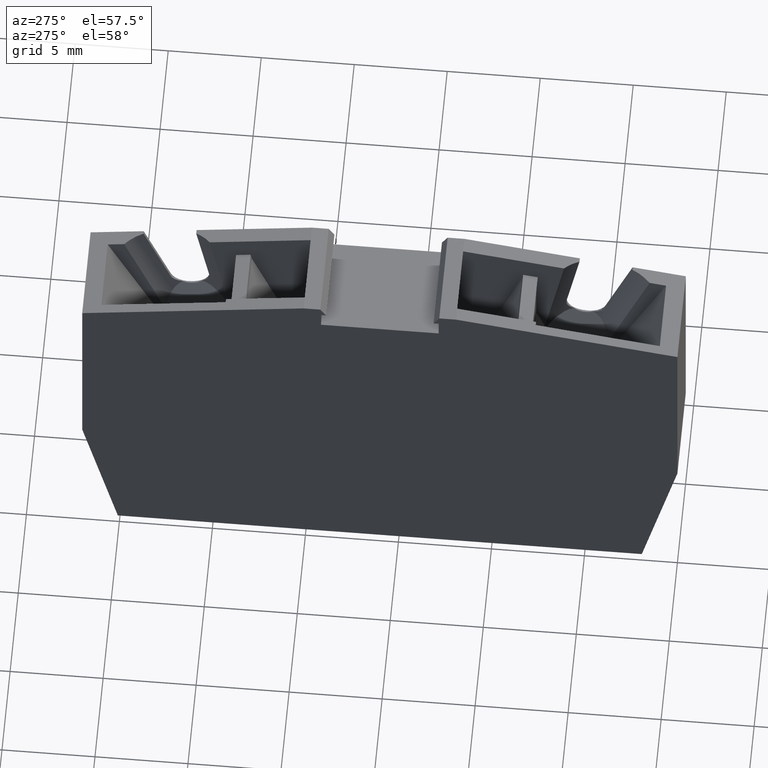
[diagram: clean part render]
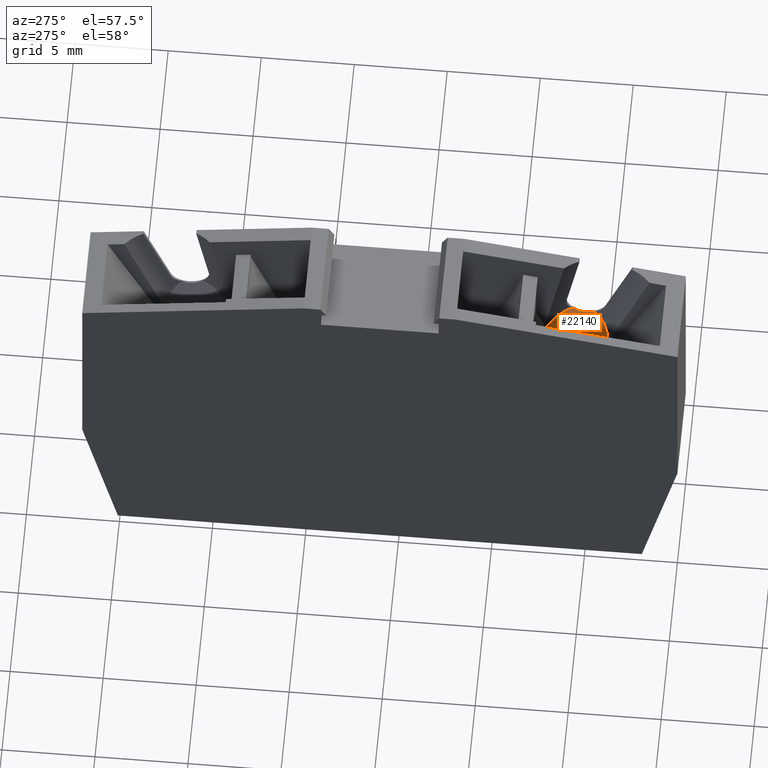
[diagram: same view with one face highlighted and labeled with its STEP entity id]
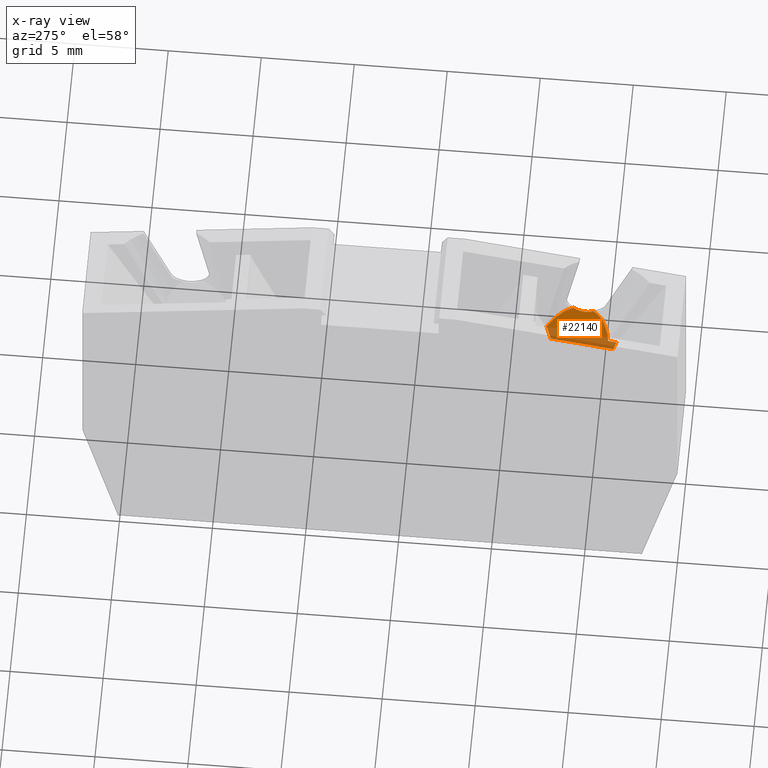
[diagram: x-ray of the same camera — body ghosted, the highlighted face saturated]
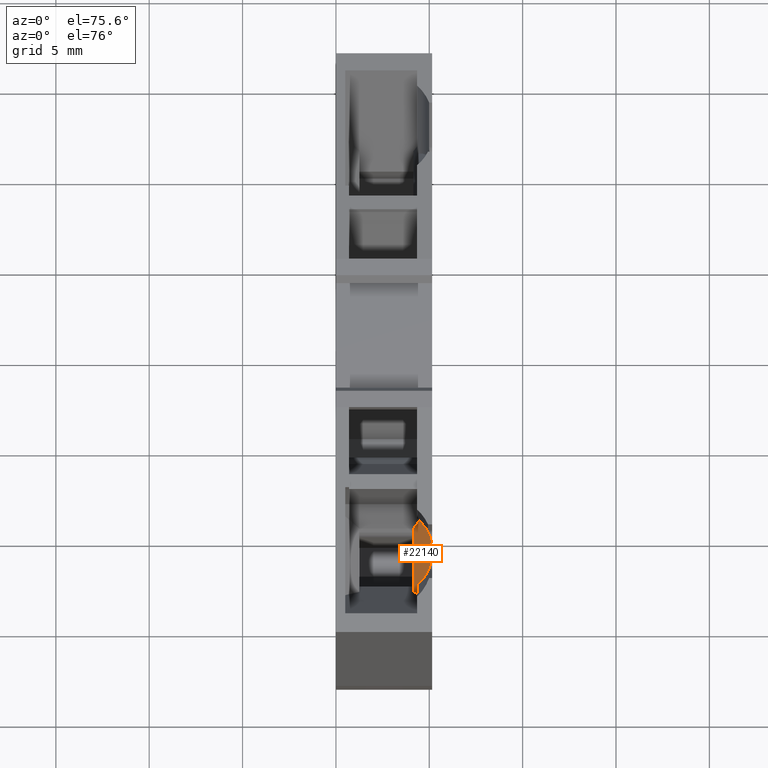
[diagram: same view with one face highlighted and labeled with its STEP entity id]
A machine part, auxiliary view. The second image highlights one B-rep face of the part: STEP entity #22140.
The next image is the same camera in x-ray: the body ghosted, the highlighted face saturated — about 40% of this face is hidden behind the body in this view.
A second angle (auxiliary view) of the same face is appended — the face is thin or edge-on in the first view.
In plain terms, the highlighted planar face has unit normal (0.8944, 0.0777, -0.4404).
Its self-contained STEP definition (entity closure, byte-faithful):
#13920=CARTESIAN_POINT('',(-5.94843651069959,122.954273956024,
55.0968748590187));
#13930=VERTEX_POINT('',#13920);
#13980=CARTESIAN_POINT('',(-6.79969013977098,122.429519481062,
54.6499999999999));
#13990=DIRECTION('',(0.445511812751607,0.0389772330826502,
-0.894427190999915));
#14000=DIRECTION('',(0.891023625503208,0.0779544661652999,
0.44721359549996));
#14010=AXIS2_PLACEMENT_3D('',#13980,#13990,#14000);
#14020=ELLIPSE('',#14010,1.1180339887499,0.999999999999999);
#14030=CARTESIAN_POINT('',(-5.80349544167924,122.51667522381,
55.1499999999998));
#14040=VERTEX_POINT('',#14030);
#14050=EDGE_CURVE('',#13930,#14040,#14020,.T.);
#14390=CARTESIAN_POINT('',(-5.78947205052613,122.356387129467,
55.1499999999998));
#14400=VERTEX_POINT('',#14390);
#14450=CARTESIAN_POINT('',(-1.70886352092563,75.7148182090403,
55.1499999999998));
#14460=DIRECTION('',(-0.0871557427476592,0.996194698091746,
-2.32737576866975E-17));
#14470=VECTOR('',#14460,1.);
#14480=LINE('',#14450,#14470);
#14490=EDGE_CURVE('',#14400,#14040,#14480,.T.);
#15300=CARTESIAN_POINT('',(-5.86052918241785,121.889599349603,
55.0942650131449));
#15310=VERTEX_POINT('',#15300);
#15420=CARTESIAN_POINT('',(-6.78566674861787,122.26923138672,
54.6499999999998));
#15430=DIRECTION('',(0.445511812751607,0.0389772330826502,
-0.894427190999915));
#15440=DIRECTION('',(0.891023625503208,0.0779544661652998,
0.44721359549996));
#15450=AXIS2_PLACEMENT_3D('',#15420,#15430,#15440);
#15460=ELLIPSE('',#15450,1.1180339887499,0.999999999999999);
#15470=EDGE_CURVE('',#14400,#15310,#15460,.T.);
#15870=CARTESIAN_POINT('',(-1.20697680372232,122.757303514224,
57.4499998170948));
#15880=DIRECTION('',(0.445511812751607,0.0389772330826502,
-0.894427190999915));
#15890=DIRECTION('',(0.891023625503208,0.0779544661652999,
0.44721359549996));
#15900=AXIS2_PLACEMENT_3D('',#15870,#15880,#15890);
#15910=ELLIPSE('',#15900,5.36656354612762,2.40000017894275);
#15920=CARTESIAN_POINT('',(-4.49209986028603,120.791731439041,
55.7280332842626));
#15930=VERTEX_POINT('',#15920);
#15940=EDGE_CURVE('',#15930,#15310,#15910,.T.);
#16420=CARTESIAN_POINT('',(-4.54769928257136,124.226057987538,
55.8499999999999));
#16430=VERTEX_POINT('',#16420);
#16460=CARTESIAN_POINT('',(-0.708639860020538,122.000100222462,
57.665222820032));
#16470=DIRECTION('',(0.445511812751607,0.0389772330826502,
-0.894427190999915));
#16480=DIRECTION('',(0.891055517659301,-0.116198469117205,
0.438768709257773));
#16490=AXIS2_PLACEMENT_3D('',#16460,#16470,#16480);
#16500=ELLIPSE('',#16490,5.93842862956372,2.61539926958888);
#16510=EDGE_CURVE('',#13930,#16430,#16500,.T.);
#16760=CARTESIAN_POINT('',(-3.88301912838894,121.218214358894,
56.0499999999999));
#16770=VERTEX_POINT('',#16760);
#17180=CARTESIAN_POINT('',(14.912573618311,134.379030085253,
65.985555255775));
#17190=DIRECTION('',(0.751705469568518,0.526349836305348,
0.397359707119515));
#17200=VECTOR('',#17190,1.);
#17210=LINE('',#17180,#17200);
#17220=EDGE_CURVE('',#15930,#16770,#17210,.T.);
#19810=CARTESIAN_POINT('',(0.0980121866522086,75.7148182090405,
56.0499999999999));
#19820=DIRECTION('',(-0.0871557427476546,0.996194698091746,
-7.29475286832201E-19));
#19830=VECTOR('',#19820,1.);
#19840=LINE('',#19810,#19830);
#19850=CARTESIAN_POINT('',(-4.17998732561923,124.612576385493,
56.0499999999999));
#19860=VERTEX_POINT('',#19850);
#19870=EDGE_CURVE('',#16770,#19860,#19840,.T.);
#21200=CARTESIAN_POINT('',(30.7687890493711,119.202219952493,
73.2221210480559));
#21210=DIRECTION('',(-0.888970892834674,0.13761996520825,
-0.436796859957581));
#21220=VECTOR('',#21210,1.);
#21230=LINE('',#21200,#21220);
#21240=CARTESIAN_POINT('',(-4.58702820632558,124.675589643061,
55.8499999999999));
#21250=VERTEX_POINT('',#21240);
#21260=EDGE_CURVE('',#19860,#21250,#21230,.T.);
#21810=CARTESIAN_POINT('',(-0.303515748364723,75.7148182090405,55.85));
#21820=DIRECTION('',(0.0871557427476627,-0.996194698091745,
1.76357366861541E-15));
#21830=VECTOR('',#21820,1.);
#21840=LINE('',#21810,#21830);
#21850=EDGE_CURVE('',#21250,#16430,#21840,.T.);
#21980=CARTESIAN_POINT('',(-3.99632159396088,122.513267466413,
56.0499999999999));
#21990=DIRECTION('',(0.445511812751607,0.0389772330826502,
-0.894427190999915));
#22000=DIRECTION('',(0.891023625503209,0.0779544661653,0.447213595499961
));
#22010=AXIS2_PLACEMENT_3D('',#21980,#21990,#22000);
#22020=PLANE('',#22010);
#22030=ORIENTED_EDGE('',*,*,#15940,.F.);
#22040=ORIENTED_EDGE('',*,*,#15470,.T.);
#22050=ORIENTED_EDGE('',*,*,#14490,.F.);
#22060=ORIENTED_EDGE('',*,*,#14050,.T.);
#22070=ORIENTED_EDGE('',*,*,#16510,.F.);
#22080=ORIENTED_EDGE('',*,*,#21850,.T.);
#22090=ORIENTED_EDGE('',*,*,#21260,.T.);
#22100=ORIENTED_EDGE('',*,*,#19870,.T.);
#22110=ORIENTED_EDGE('',*,*,#17220,.T.);
#22120=EDGE_LOOP('',(#22110,#22100,#22090,#22080,#22070,#22060,#22050,
#22040,#22030));
#22130=FACE_OUTER_BOUND('',#22120,.T.);
#22140=ADVANCED_FACE('',(#22130),#22020,.F.);